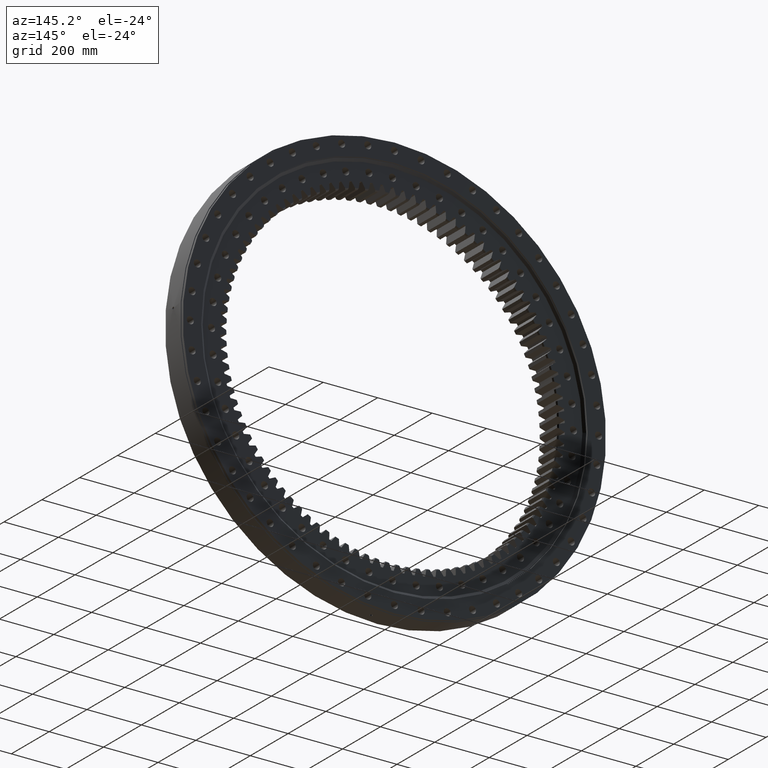
[diagram: clean part render]
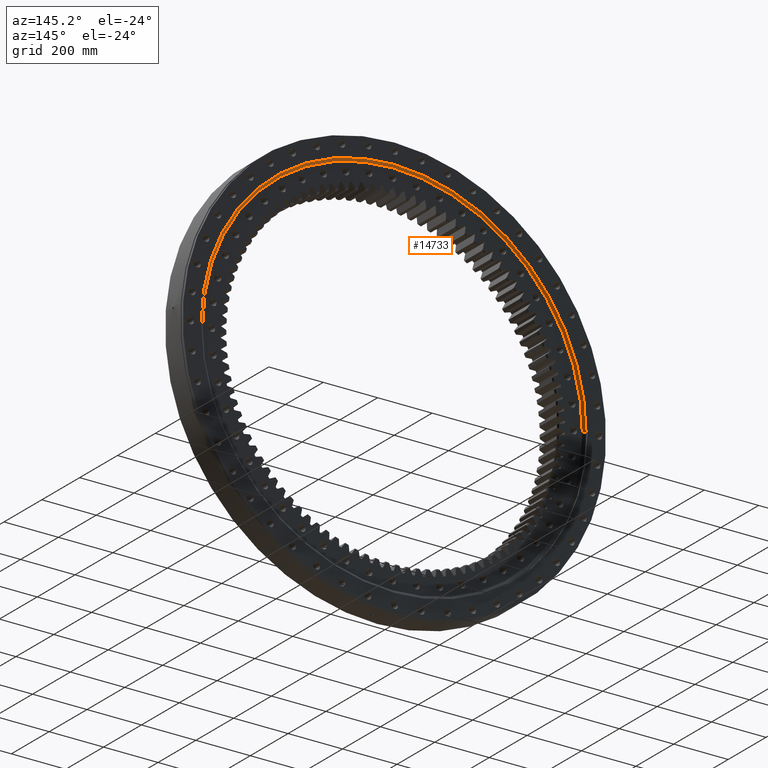
[diagram: same view with one face highlighted and labeled with its STEP entity id]
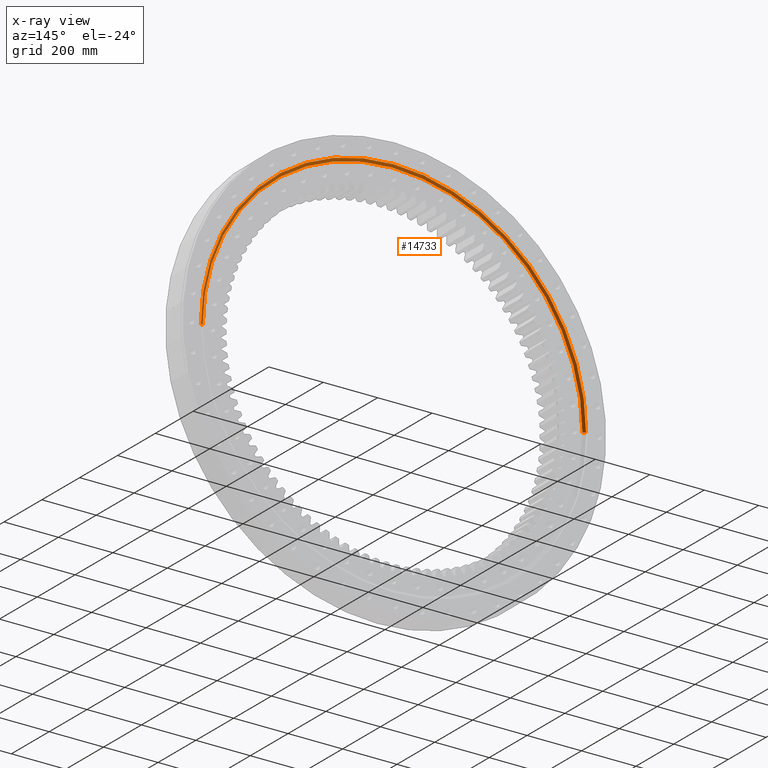
[diagram: x-ray of the same camera — body ghosted, the highlighted face saturated]
A machine part, auxiliary view. The second image highlights one B-rep face of the part: STEP entity #14733.
The next image is the same camera in x-ray: the body ghosted, the highlighted face saturated — about 0% of this face is hidden behind the body in this view.
In plain terms, the highlighted conical surface has half-angle 63.206 deg.
Its self-contained STEP definition (entity closure, byte-faithful):
#28 = VERTEX_POINT ( 'NONE', #24589 ) ;
#1139 = VERTEX_POINT ( 'NONE', #12743 ) ;
#3521 = EDGE_CURVE ( 'NONE', #24941, #25382, #20413, .T. ) ;
#3537 = AXIS2_PLACEMENT_3D ( 'NONE', #19314, #19282, #19247 ) ;
#3789 = EDGE_CURVE ( 'NONE', #25382, #28, #11491, .T. ) ;
#3918 = DIRECTION ( 'NONE',  ( -0.8926347946143679000, 0.4507805712802684900, 0.0000000000000000000 ) ) ;
#4741 = CARTESIAN_POINT ( 'NONE',  ( 697.7224999999998500, 39.99999999999973000, 8.605868603138256400E-014 ) ) ;
#4995 = VECTOR ( 'NONE', #3918, 1000.000000000000000 ) ;
#5055 = CARTESIAN_POINT ( 'NONE',  ( 707.7224999999998500, 45.04999999999986900, 8.667100943095625200E-014 ) ) ;
#5161 = DIRECTION ( 'NONE',  ( 0.8926347946143680100, 0.4507805712802681100, 1.093162344032040600E-016 ) ) ;
#6650 = FACE_OUTER_BOUND ( 'NONE', #29592, .T. ) ;
#9880 = DIRECTION ( 'NONE',  ( -1.000000000000000000, 1.790111258707152800E-016, 0.0000000000000000000 ) ) ;
#9917 = DIRECTION ( 'NONE',  ( 1.836909530733565900E-016, 1.000000000000000000, -0.0000000000000000000 ) ) ;
#9953 = CARTESIAN_POINT ( 'NONE',  ( -1.015370316089508500E-015, 39.99999999999985800, 0.0000000000000000000 ) ) ;
#10569 = AXIS2_PLACEMENT_3D ( 'NONE', #14538, #13516, #13758 ) ;
#11491 = LINE ( 'NONE', #5055, #17849 ) ;
#11775 = EDGE_CURVE ( 'NONE', #1139, #28, #17313, .T. ) ;
#12743 = CARTESIAN_POINT ( 'NONE',  ( -707.7224999999998500, 45.05000000000013200, 0.0000000000000000000 ) ) ;
#13516 = DIRECTION ( 'NONE',  ( 1.836909530733565900E-016, 1.000000000000000000, -0.0000000000000000000 ) ) ;
#13758 = DIRECTION ( 'NONE',  ( -1.000000000000000000, 1.862862692287406000E-016, 0.0000000000000000000 ) ) ;
#14091 = CARTESIAN_POINT ( 'NONE',  ( -697.7224999999998500, 39.99999999999997900, 0.0000000000000000000 ) ) ;
#14538 = CARTESIAN_POINT ( 'NONE',  ( -8.773100306903014800E-017, 45.04999999999999700, 0.0000000000000000000 ) ) ;
#14733 = ADVANCED_FACE ( 'NONE', ( #6650 ), #24118, .F. ) ;
#16527 = ORIENTED_EDGE ( 'NONE', *, *, #3789, .F. ) ;
#17313 = CIRCLE ( 'NONE', #3537, 707.7224999999998500 ) ;
#17359 = ORIENTED_EDGE ( 'NONE', *, *, #28078, .T. ) ;
#17772 = LINE ( 'NONE', #18253, #4995 ) ;
#17849 = VECTOR ( 'NONE', #5161, 1000.000000000000100 ) ;
#18253 = CARTESIAN_POINT ( 'NONE',  ( -707.7224999999998500, 45.05000000000013200, 0.0000000000000000000 ) ) ;
#19247 = DIRECTION ( 'NONE',  ( -1.000000000000000000, 1.862862692287406000E-016, 0.0000000000000000000 ) ) ;
#19282 = DIRECTION ( 'NONE',  ( 1.836909530733565900E-016, 1.000000000000000000, -0.0000000000000000000 ) ) ;
#19314 = CARTESIAN_POINT ( 'NONE',  ( -8.773100306903014800E-017, 45.04999999999999700, 0.0000000000000000000 ) ) ;
#19919 = AXIS2_PLACEMENT_3D ( 'NONE', #9953, #9917, #9880 ) ;
#20413 = CIRCLE ( 'NONE', #19919, 697.7224999999998500 ) ;
#24118 = CONICAL_SURFACE ( 'NONE', #10569, 707.7224999999998500, 1.103156723031656300 ) ;
#24589 = CARTESIAN_POINT ( 'NONE',  ( 707.7224999999998500, 45.04999999999986900, 8.667100943095625200E-014 ) ) ;
#24941 = VERTEX_POINT ( 'NONE', #14091 ) ;
#25382 = VERTEX_POINT ( 'NONE', #4741 ) ;
#28010 = ORIENTED_EDGE ( 'NONE', *, *, #11775, .T. ) ;
#28078 = EDGE_CURVE ( 'NONE', #24941, #1139, #17772, .T. ) ;
#29592 = EDGE_LOOP ( 'NONE', ( #16527, #30069, #17359, #28010 ) ) ;
#30069 = ORIENTED_EDGE ( 'NONE', *, *, #3521, .F. ) ;